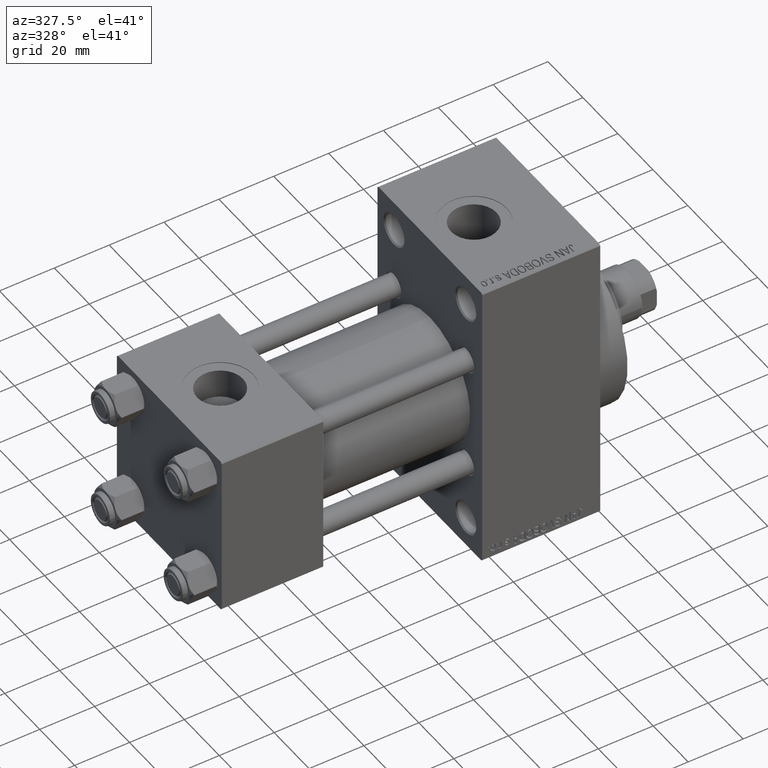
[diagram: clean part render]
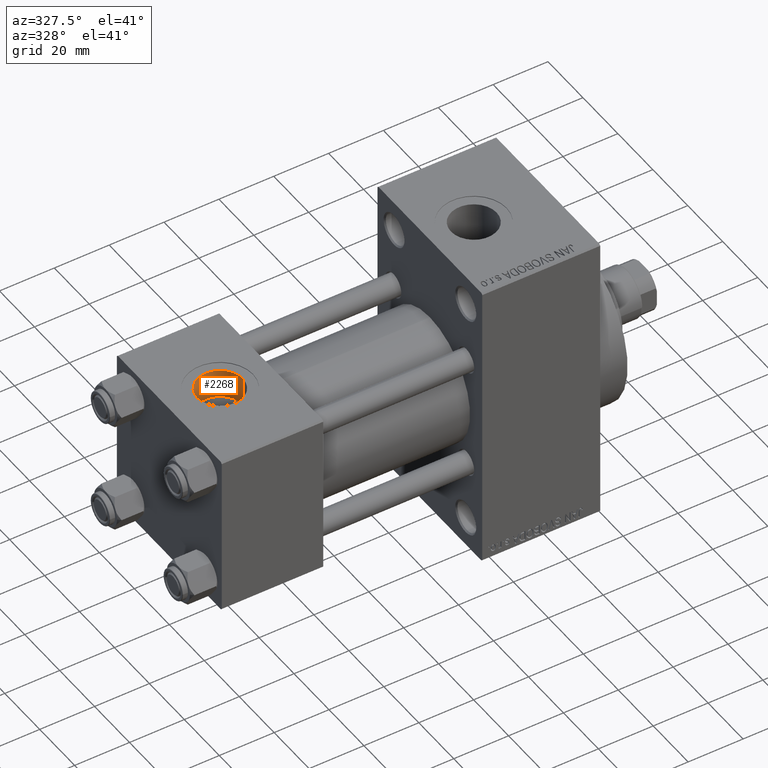
[diagram: same view with one face highlighted and labeled with its STEP entity id]
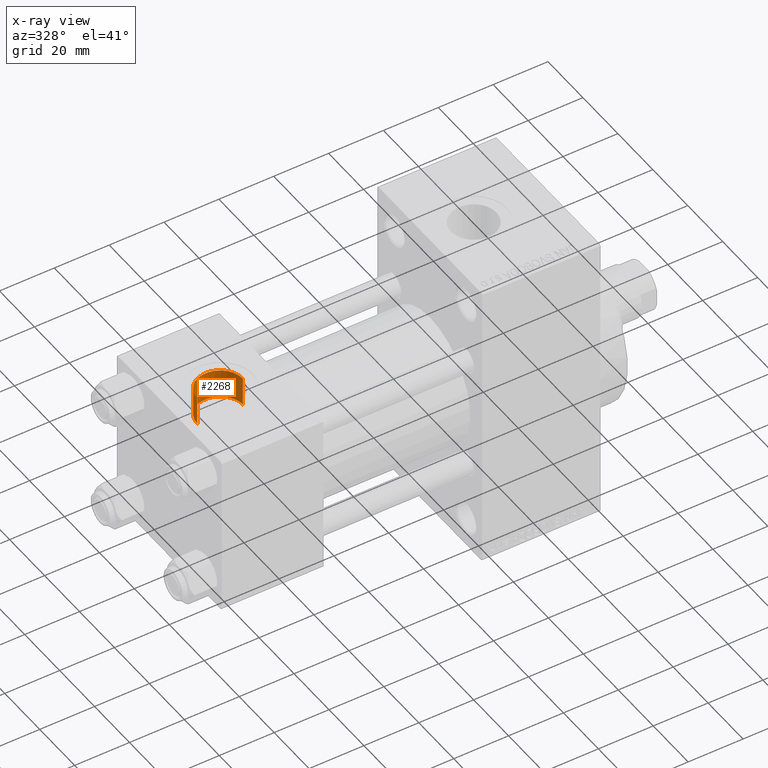
[diagram: x-ray of the same camera — body ghosted, the highlighted face saturated]
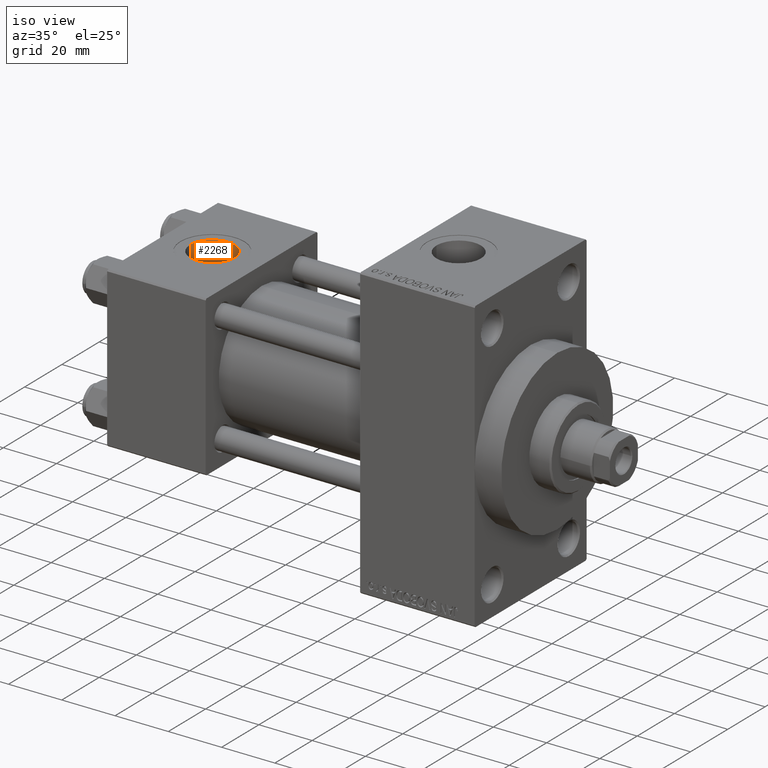
[diagram: same view with one face highlighted and labeled with its STEP entity id]
A machine part, auxiliary view. The second image highlights one B-rep face of the part: STEP entity #2268.
The next image is the same camera in x-ray: the body ghosted, the highlighted face saturated — about 0% of this face is hidden behind the body in this view.
A second angle (iso view) of the same face is appended — the face is thin or edge-on in the first view.
In plain terms, the highlighted cylindrical surface (edge-blend (fillet) strip) has radius 8.33 mm, axis along (0, 0, 1).
Its self-contained STEP definition (entity closure, byte-faithful):
#104 = ORIENTED_EDGE ( 'NONE', *, *, #13837, .F. ) ;
#200 = ORIENTED_EDGE ( 'NONE', *, *, #41845, .T. ) ;
#446 = CARTESIAN_POINT ( 'NONE',  ( 26.82999999999999829, -3.469446951953614978E-15, 29.79999999999999716 ) ) ;
#736 = CIRCLE ( 'NONE', #34978, 8.330000000000000071 ) ;
#2268 = ADVANCED_FACE ( 'NONE', ( #37144 ), #46012, .F. ) ;
#3164 = VECTOR ( 'NONE', #6955, 1000.000000000000000 ) ;
#3532 = CARTESIAN_POINT ( 'NONE',  ( 10.16999999999999638, -2.449316168263869821E-15, 29.79999999999999716 ) ) ;
#4416 = DIRECTION ( 'NONE',  ( 1.000000000000000000, 0.000000000000000000, 0.000000000000000000 ) ) ;
#4872 = DIRECTION ( 'NONE',  ( 1.000000000000000000, 0.000000000000000000, 0.000000000000000000 ) ) ;
#4905 = CARTESIAN_POINT ( 'NONE',  ( 18.50000000000000000, -3.469446951953614978E-15, 29.79999999999999716 ) ) ;
#6955 = DIRECTION ( 'NONE',  ( -0.000000000000000000, -0.000000000000000000, 1.000000000000000000 ) ) ;
#8406 = VERTEX_POINT ( 'NONE', #15230 ) ;
#9636 = DIRECTION ( 'NONE',  ( -0.000000000000000000, -0.000000000000000000, 1.000000000000000000 ) ) ;
#10702 = CARTESIAN_POINT ( 'NONE',  ( 10.16999999999999638, -2.449316168263869821E-15, 19.19999999999999574 ) ) ;
#12434 = CIRCLE ( 'NONE', #46658, 8.330000000000000071 ) ;
#13837 = EDGE_CURVE ( 'NONE', #8406, #36658, #48585, .T. ) ;
#15230 = CARTESIAN_POINT ( 'NONE',  ( 10.16999999999999638, -2.449316168263869821E-15, 19.19999999999999574 ) ) ;
#15825 = DIRECTION ( 'NONE',  ( 1.000000000000000000, 0.000000000000000000, 0.000000000000000000 ) ) ;
#16091 = LINE ( 'NONE', #17358, #37236 ) ;
#17358 = CARTESIAN_POINT ( 'NONE',  ( 26.82999999999999829, -3.469446951953614978E-15, 19.19999999999999574 ) ) ;
#18973 = EDGE_LOOP ( 'NONE', ( #104, #46816, #33741, #200 ) ) ;
#21264 = CARTESIAN_POINT ( 'NONE',  ( 26.82999999999999829, -3.469446951953614978E-15, 19.19999999999999574 ) ) ;
#23556 = DIRECTION ( 'NONE',  ( 0.000000000000000000, 0.000000000000000000, 1.000000000000000000 ) ) ;
#24046 = CARTESIAN_POINT ( 'NONE',  ( 18.50000000000000000, -3.469446951953614978E-15, 19.19999999999999574 ) ) ;
#24097 = DIRECTION ( 'NONE',  ( 0.000000000000000000, 0.000000000000000000, 1.000000000000000000 ) ) ;
#25973 = AXIS2_PLACEMENT_3D ( 'NONE', #27058, #38527, #4872 ) ;
#27058 = CARTESIAN_POINT ( 'NONE',  ( 18.50000000000000000, -3.469446951953614978E-15, 19.19999999999999574 ) ) ;
#33741 = ORIENTED_EDGE ( 'NONE', *, *, #37572, .T. ) ;
#33830 = EDGE_CURVE ( 'NONE', #34131, #8406, #12434, .T. ) ;
#34131 = VERTEX_POINT ( 'NONE', #21264 ) ;
#34978 = AXIS2_PLACEMENT_3D ( 'NONE', #4905, #24097, #4416 ) ;
#36170 = VERTEX_POINT ( 'NONE', #446 ) ;
#36658 = VERTEX_POINT ( 'NONE', #3532 ) ;
#37144 = FACE_OUTER_BOUND ( 'NONE', #18973, .T. ) ;
#37236 = VECTOR ( 'NONE', #9636, 1000.000000000000000 ) ;
#37572 = EDGE_CURVE ( 'NONE', #34131, #36170, #16091, .T. ) ;
#38527 = DIRECTION ( 'NONE',  ( -0.000000000000000000, -0.000000000000000000, 1.000000000000000000 ) ) ;
#41845 = EDGE_CURVE ( 'NONE', #36170, #36658, #736, .T. ) ;
#46012 = CYLINDRICAL_SURFACE ( 'NONE', #25973, 8.330000000000000071 ) ;
#46658 = AXIS2_PLACEMENT_3D ( 'NONE', #24046, #23556, #15825 ) ;
#46816 = ORIENTED_EDGE ( 'NONE', *, *, #33830, .F. ) ;
#48585 = LINE ( 'NONE', #10702, #3164 ) ;